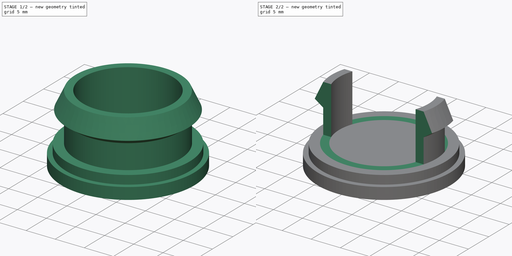
[diagram: build sequence overview — one tinted view per stage of 2, left to right]
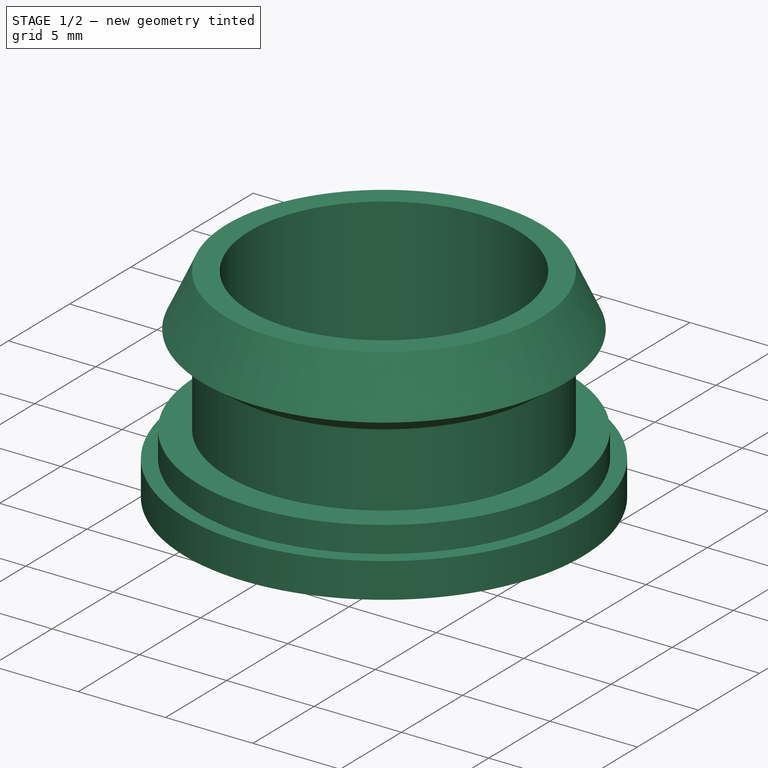
[diagram: stage 1 of 2 — iso view after this stage's code; geometry added in this stage tinted green]
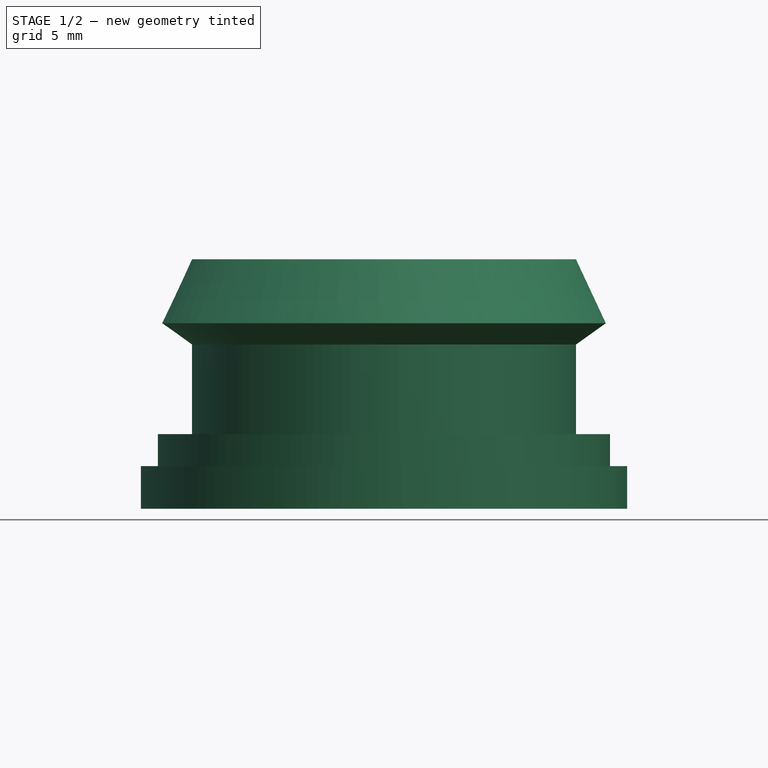
[diagram: stage 1 of 2 — front view after this stage's code; geometry added in this stage tinted green]
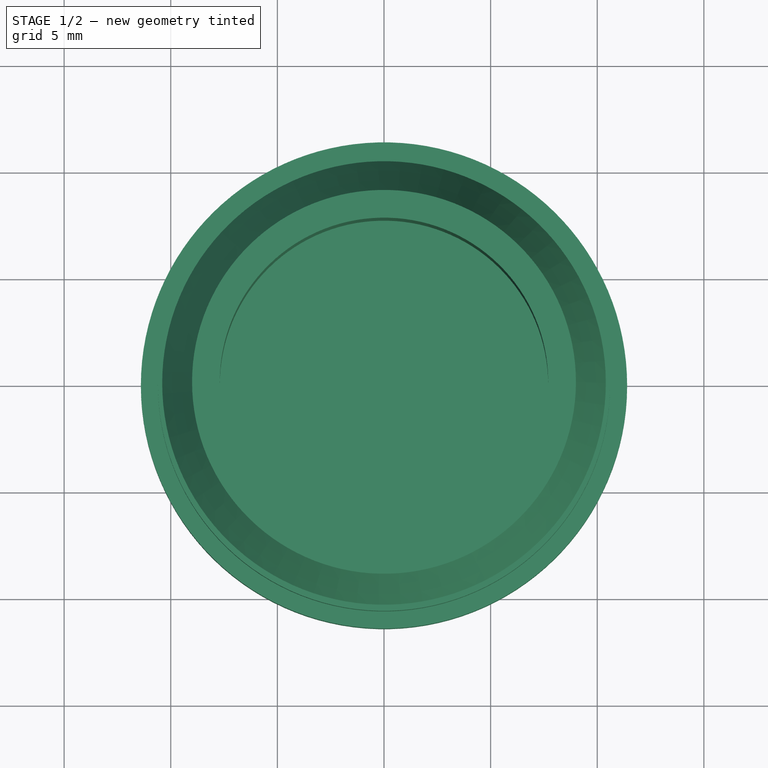
[diagram: stage 1 of 2 — top view after this stage's code; geometry added in this stage tinted green]
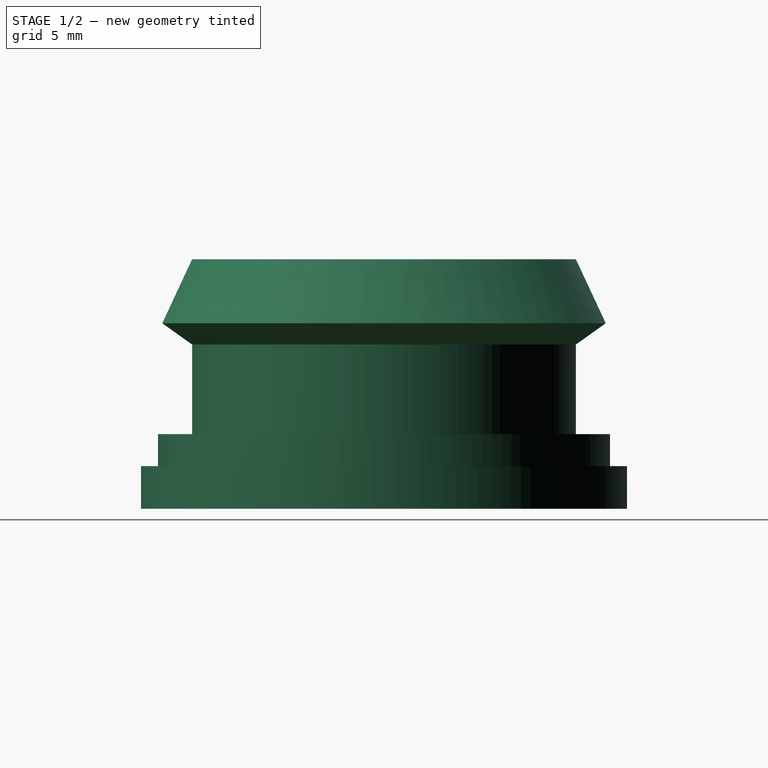
[diagram: stage 1 of 2 — right view after this stage's code; geometry added in this stage tinted green]
FCSTD DOCUMENT  (FreeCAD 0.19R24276 (Git))
Label: BotaoPajero
License: All rights reserved
LicenseURL: http://en.wikipedia.org/wiki/All_rights_reserved
objects: Sketcher::SketchObject×2, PartDesign::Revolution×1, PartDesign::Pocket×1, PartDesign::Body×1
note: 7 computed .brp shape members not serialized (recipe doc carries the construction recipe); baked Part::Feature solids carry a one-line shape summary decoded from their .brp

FEATURE [Sketcher::SketchObject] Sketch
  FullyConstrained = true
  MapMode = 5
  Placement = pos=(0,0,0) rot=(1,0,0;1.5708rad)
  Support = -> [XZ_Plane]
  expr: Constraints[23] = 2.7 - 1.3
  expr: Constraints[30] = 2.4 - 0.8
  expr: Constraints[11] = 3.5 - 2
  expr: Constraints[2] = 22.8 / 2
  sketch-geometry (12):
    g0: LineSegment StartX=0 StartY=0 StartZ=0 EndX=11.4 EndY=0 EndZ=0
    g1: LineSegment StartX=11.4 StartY=0 StartZ=0 EndX=11.4 EndY=2 EndZ=0
    g2: LineSegment StartX=11.4 StartY=2 StartZ=0 EndX=10.6 EndY=2 EndZ=0
    g3: LineSegment StartX=10.6 StartY=2 StartZ=0 EndX=10.6 EndY=3.5 EndZ=0
    g4: LineSegment StartX=10.6 StartY=3.5 StartZ=0 EndX=9 EndY=3.5 EndZ=0
    g5: LineSegment StartX=9 StartY=3.5 StartZ=0 EndX=9 EndY=7.7 EndZ=0
    g6: LineSegment StartX=9 StartY=7.7 StartZ=0 EndX=10.4 EndY=8.7 EndZ=0
    g7: LineSegment StartX=10.4 StartY=8.7 StartZ=0 EndX=9 EndY=11.7 EndZ=0
    g8: LineSegment StartX=9 StartY=11.7 StartZ=0 EndX=7.7 EndY=11.7 EndZ=0
    g9: LineSegment StartX=7.7 StartY=11.7 StartZ=0 EndX=7.7 EndY=3.5 EndZ=0
    g10: LineSegment StartX=7.7 StartY=3.5 StartZ=0 EndX=0 EndY=3.5 EndZ=0
    g11: LineSegment StartX=0 StartY=3.5 StartZ=0 EndX=0 EndY=0 EndZ=0
  constraints (35):
    c: Coincident(g0,g-1)
    c: Horizontal(g0)
    c: DistanceX(g0,g0) = 11.4
    c: Coincident(g1,g0)
    c: Vertical(g1)
    c: DistanceY(g1,g1) = 2
    c: Coincident(g2,g1)
    c: Horizontal(g2)
    c: DistanceX(g2,g2) = 0.8
    c: Coincident(g3,g2)
    c: Vertical(g3)
    c: DistanceY(g3,g3) = 1.5
    c: Coincident(g4,g3)
    c: Horizontal(g4)
    c: Vertical(g5)
    c: Coincident(g6,g5)
    c: Coincident(g7,g6)
    c: Coincident(g8,g7)
    c: Horizontal(g8)
    c: Coincident(g9,g8)
    c: Vertical(g9)
    c: DistanceX(g8,g8) = 1.3
    c: DistanceX(g5,g7) = 0
    c: DistanceX(g5,g6) = 1.4
    c: DistanceY(g5,g6) = 1
    c: Coincident(g10,g9)
    c: PointOnObject(g10,g-2)
    c: Horizontal(g10)
    c: Coincident(g11,g10)
    c: Coincident(g11,g0)
    c: DistanceX(g4,g4) = 1.6
    c: Coincident(g5,g4)
    c: DistanceY(g9,g4) = 0
    c: DistanceY(g6,g7) = 3
    c: DistanceY(g4,g7) = 8.2
FEATURE [PartDesign::Revolution] Revolution
  Angle = 360
  Axis = (0,-2e-16,1)
  Base = (0,0,0)
  Placement = pos=(0,0,0) rot=(1,0,0;1.5708rad)
  Profile = -> Sketch
  ReferenceAxis = -> Sketch [V_Axis]
  Reversed = true
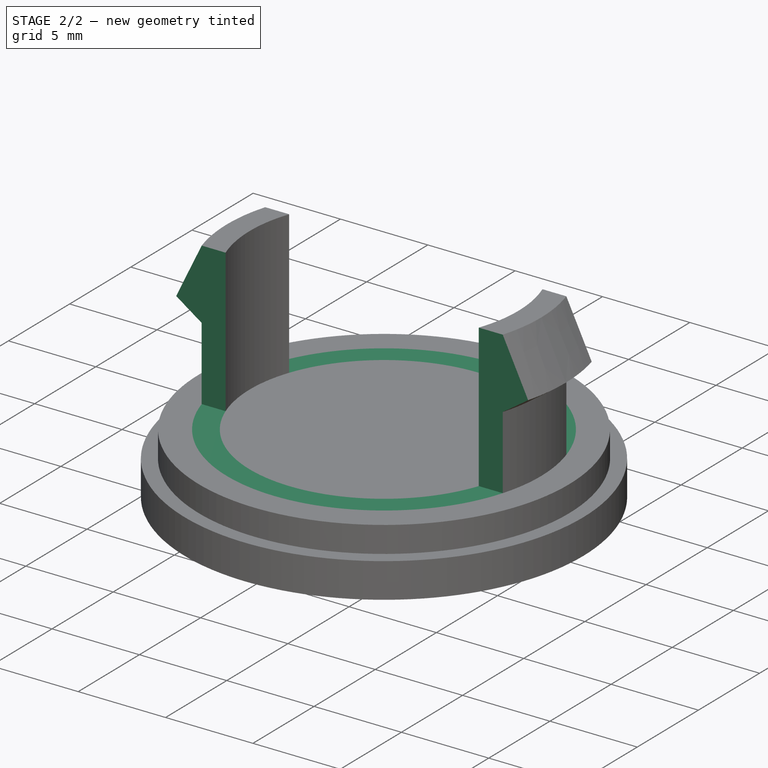
[diagram: stage 2 of 2 — iso view after this stage's code; geometry added in this stage tinted green]
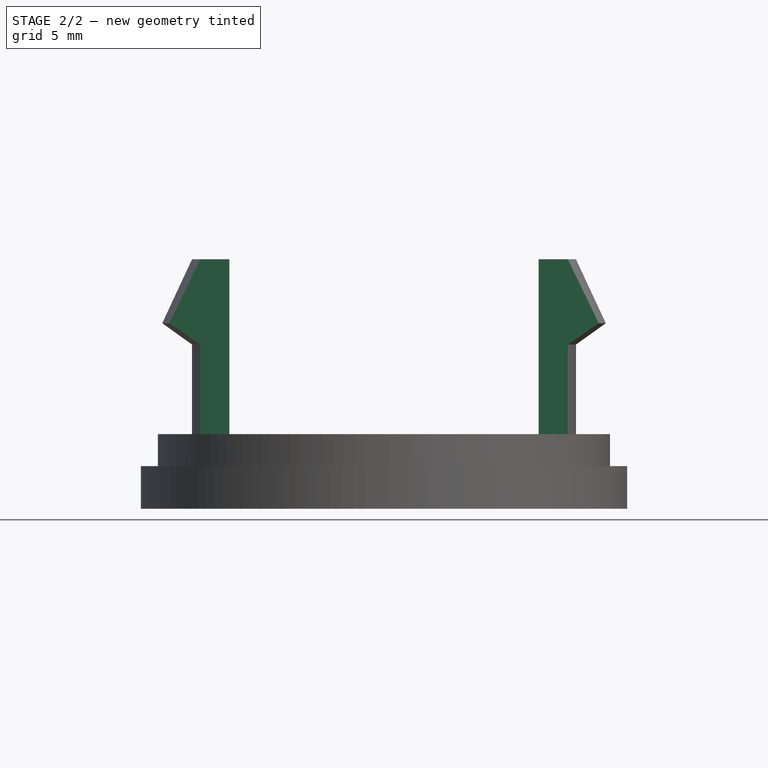
[diagram: stage 2 of 2 — front view after this stage's code; geometry added in this stage tinted green]
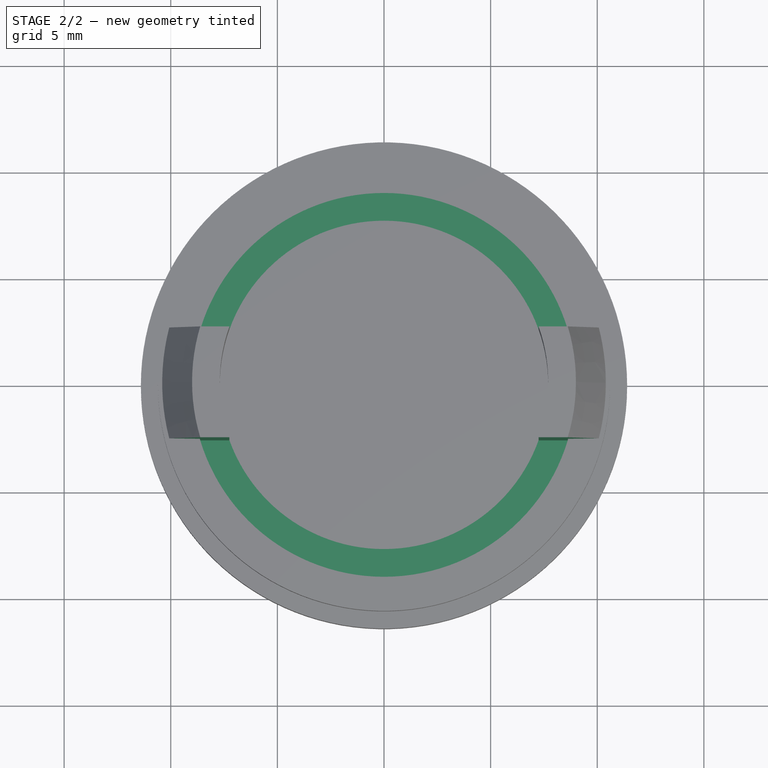
[diagram: stage 2 of 2 — top view after this stage's code; geometry added in this stage tinted green]
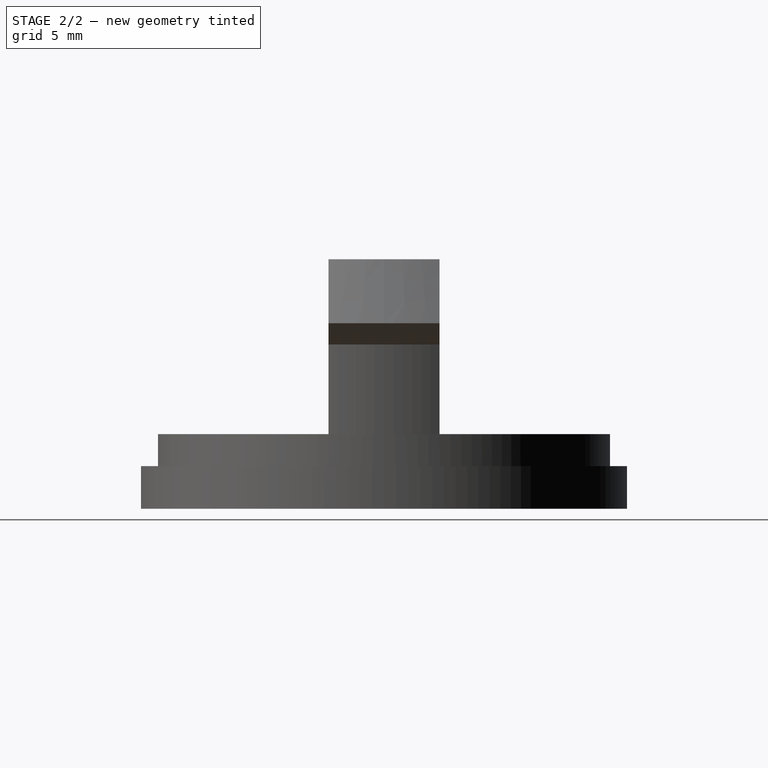
[diagram: stage 2 of 2 — right view after this stage's code; geometry added in this stage tinted green]
FEATURE [Sketcher::SketchObject] Sketch001
  FullyConstrained = false
  MapMode = 5
  Placement = pos=(0,-2.6e-15,11.7) rot=(0,0,1;3.14159rad)
  Support = -> [Revolution]
  expr: Constraints[17] = 5.2 / 2
  expr: Constraints[8] = 5.2 / 2
  sketch-geometry (8):
    g0: LineSegment StartX=-14.5313 StartY=14.4881 StartZ=0 EndX=14.38 EndY=14.4881 EndZ=0
    g1: LineSegment StartX=14.38 StartY=14.4881 StartZ=0 EndX=14.38 EndY=2.6 EndZ=0
    g2: LineSegment StartX=14.38 StartY=2.6 StartZ=0 EndX=-14.5313 EndY=2.6 EndZ=0
    g3: LineSegment StartX=-14.5313 StartY=2.6 StartZ=0 EndX=-14.5313 EndY=14.4881 EndZ=0
    g4: LineSegment StartX=-14.1744 StartY=-2.6 StartZ=0 EndX=14.499 EndY=-2.6 EndZ=0
    g5: LineSegment StartX=14.499 StartY=-2.6 StartZ=0 EndX=14.499 EndY=-12.3412 EndZ=0
    g6: LineSegment StartX=14.499 StartY=-12.3412 StartZ=0 EndX=-14.1744 EndY=-12.3412 EndZ=0
    g7: LineSegment StartX=-14.1744 StartY=-12.3412 StartZ=0 EndX=-14.1744 EndY=-2.6 EndZ=0
  constraints (18):
    c: Coincident(g0,g1)
    c: Coincident(g1,g2)
    c: Coincident(g2,g3)
    c: Coincident(g3,g0)
    c: Horizontal(g0)
    c: Horizontal(g2)
    c: Vertical(g1)
    c: Vertical(g3)
    c: DistanceY(g-1,g2) = 2.6
    c: Coincident(g4,g5)
    c: Coincident(g5,g6)
    c: Coincident(g6,g7)
    c: Coincident(g7,g4)
    c: Horizontal(g4)
    c: Horizontal(g6)
    c: Vertical(g5)
    c: Vertical(g7)
    c: DistanceY(g4,g-1) = 2.6
FEATURE [PartDesign::Pocket] Pocket
  BaseFeature = -> Revolution
  Length = 8.2
  Length2 = 100
  Placement = pos=(0,0,0) rot=(1,0,0;1.5708rad)
  Profile = -> Sketch001
  Type = 0
FEATURE [PartDesign::Body] Body
  Group = -> [Sketch,Revolution,Sketch001,Pocket]
  Origin = -> Origin
  Tip = -> Pocket
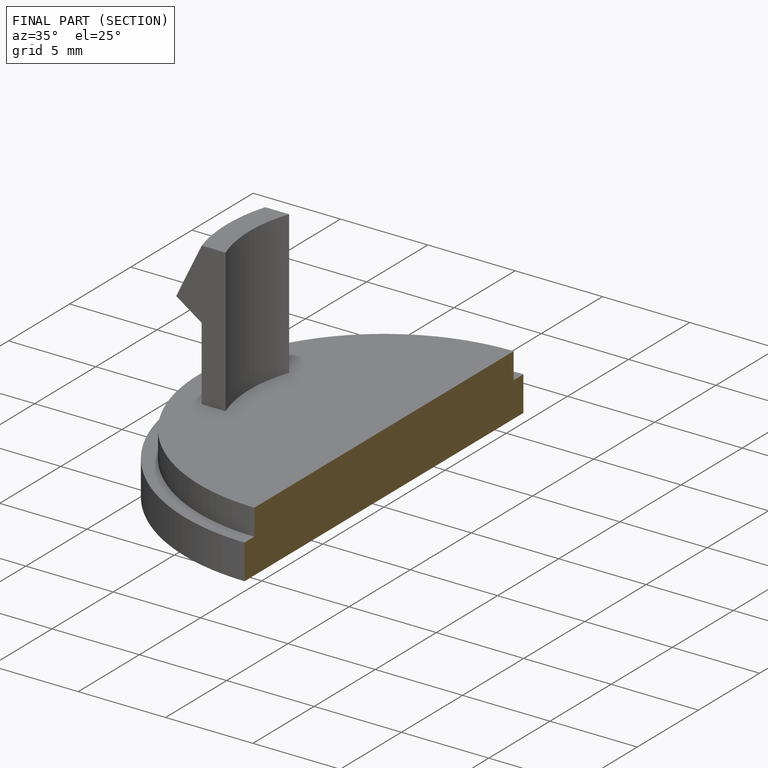
[diagram: finished part — half-section view (interior)]
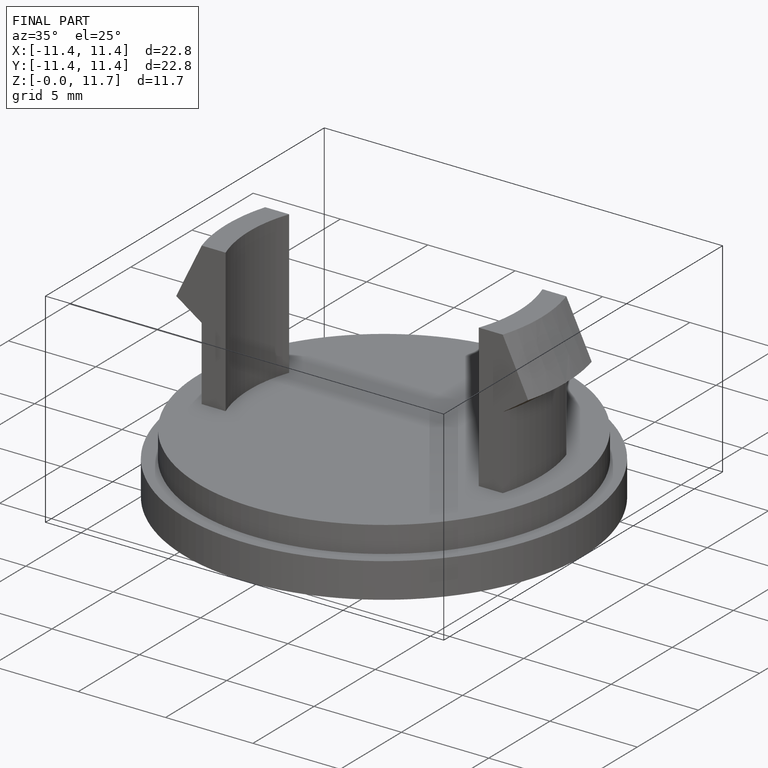
[diagram: finished part — iso view with bounding-box wireframe]
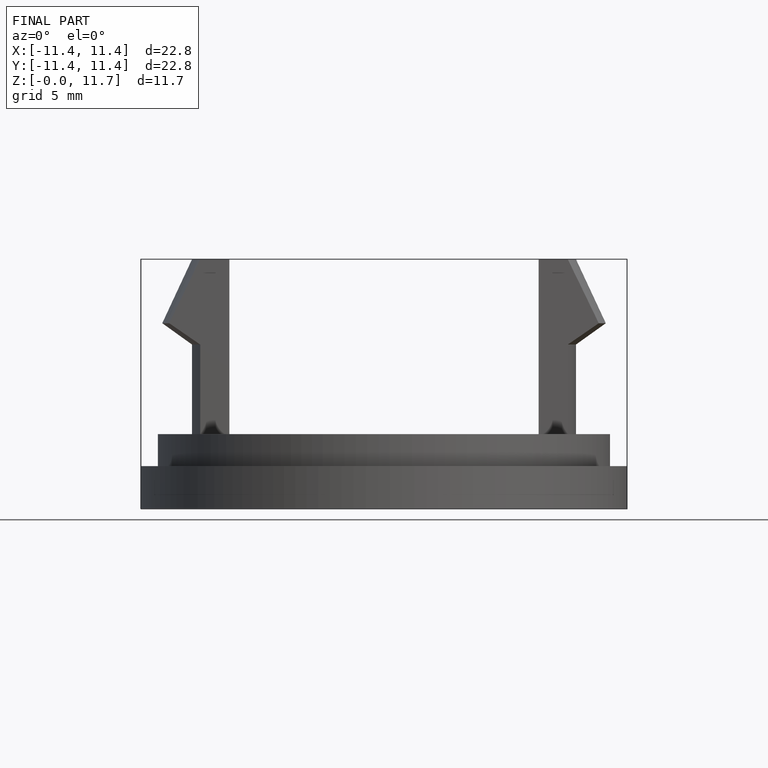
[diagram: finished part — front view with bounding-box wireframe]
